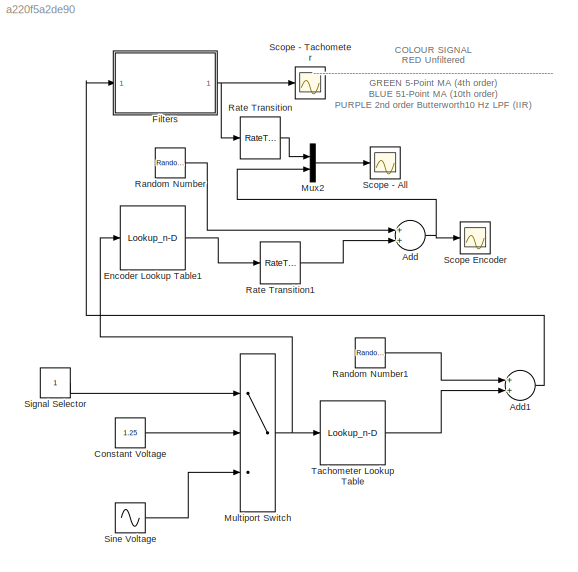
MODEL slx_a220f5a2de90
KIND model
CONFIG AbsTol = auto
CONFIG EnableMultiTasking = on
CONFIG FixedStep = 0.005
CONFIG MaxStep = auto
CONFIG MinStep = auto
CONFIG RelTol = 1e-3
CONFIG SampleTimeConstraint = Unconstrained
CONFIG Solver = FixedStepDiscrete
CONFIG SolverName = FixedStepDiscrete
CONFIG StartTime = 0.0
CONFIG StopTime = inf
BLOCK [Sum] Add
  InputSameDT = off
  OutDataTypeStr = Inherit: Inherit via internal rule
  Ports = [2, 1]
  SaturateOnIntegerOverflow = off
BLOCK [Sum] Add1
  InputSameDT = off
  OutDataTypeStr = Inherit: Inherit via internal rule
  Ports = [2, 1]
  SaturateOnIntegerOverflow = off
BLOCK [Constant] Constant Voltage
  Value = 1.25
BLOCK [Lookup_n-D] Encoder Lookup Table1
  BreakpointsForDimension1 = [-3:1:3]
  InternalRulePriority = Speed
  NumberOfTableDimensions = 1
  Ports = [1, 1]
  RndMeth = Simplest
  Table = [-265, -171, -78, 0, 81, 176, 275]
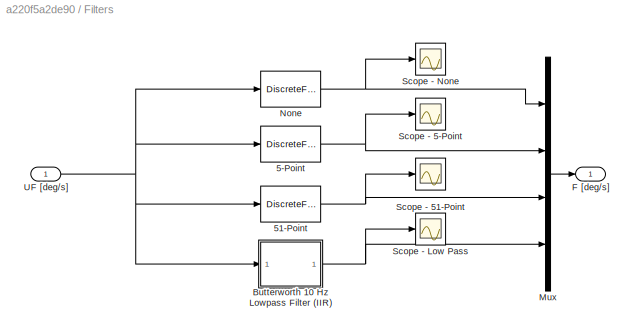
BLOCK [SubSystem] Filters
  Ports = [1, 1]
  RequestExecContextInheritance = off
  Variant = off
BLOCK [DiscreteFilter] Filters/5-Point
  Denominator = [1]
  InputPortMap = u0
  Numerator = 1/5*ones(1,5,'double')
  Ports = [1, 1]
BLOCK [DiscreteFilter] Filters/51-Point
  Denominator = [1]
  InputPortMap = u0
  Numerator = 1/51*ones(1,51,'double')
  Ports = [1, 1]
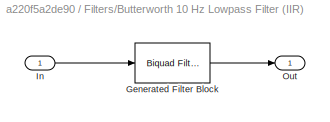
BLOCK [SubSystem] Filters/Butterworth 10 Hz Lowpass Filter (IIR)
  CopyFcn = fdesignblkfcn(gcbh, {'CopyFcn'});
  DialogController = fdesignblkfcn
  InitFcn = fdesignblkfcn(gcbh, {'InitFcn'});
  Ports = [1, 1]
  RequestExecContextInheritance = off
  UserDataPersistent = on
  Variant = off
BLOCK [Reference] Filters/Butterworth 10 Hz Lowpass Filter (IIR)/Generated Filter Block  REF=dsparch4/Biquad Filter
  Ports = [1, 1]
  SourceBlock = dsparch4/Biquad Filter
  SourceProductBaseCode = DS
  SourceProductName = DSP System Toolbox
  SourceType = Biquad Filter
  Tag = BlockMethodSubSystem
  UserDataPersistent = on
BLOCK [Inport] Filters/Butterworth 10 Hz Lowpass Filter (IIR)/In
  IconDisplay = Port number
BLOCK [Outport] Filters/Butterworth 10 Hz Lowpass Filter (IIR)/Out
  IconDisplay = Port number
BLOCK [Outport] Filters/F [deg//s]
  IconDisplay = Port number
BLOCK [Mux] Filters/Mux
  DisplayOption = bar
  Ports = [4, 1]
BLOCK [DiscreteFilter] Filters/None
  Denominator = [1]
  InputPortMap = u0
  Ports = [1, 1]
BLOCK [Scope] Filters/Scope - 5-Point
  NumInputPorts = 1
  Ports = [1]
  ScopeSpecificationString = C++SS(StrPVP('Location','[188, 390, 512, 629]'),StrPVP('Open','off'),MxPVP('AxesTitles',53,'struct(''axes1'',''%<SignalLabel>'')'),MxPVP('ScopeGraphics',56,'struct(''FigureColor'',''[0.5 0.5 0.5]'',''AxesColor'',''[0 0 0]'',''AxesTickColor'',''[1 1 1]'',''LineColors'',''[1 1 0;1 0 1;0 1 1;1 0 0;0 1 0;0 0 1]'',''LineStyles'',''-|-|-|-|-|-'',''LineWidths'',''[0.5 0.5 0.5 0.5 0.5 0.5]'',''MarkerStyle...<+313ch>
BLOCK [Scope] Filters/Scope - 51-Point
  NumInputPorts = 1
  Ports = [1]
  ScopeSpecificationString = C++SS(StrPVP('Location','[188, 390, 727, 726]'),StrPVP('Open','off'),MxPVP('AxesTitles',53,'struct(''axes1'',''%<SignalLabel>'')'),MxPVP('ScopeGraphics',56,'struct(''FigureColor'',''[0.5 0.5 0.5]'',''AxesColor'',''[0 0 0]'',''AxesTickColor'',''[1 1 1]'',''LineColors'',''[1 1 0;1 0 1;0 1 1;1 0 0;0 1 0;0 0 1]'',''LineStyles'',''-|-|-|-|-|-'',''LineWidths'',''[0.5 0.5 0.5 0.5 0.5 0.5]'',''MarkerStyle...<+318ch>
BLOCK [Scope] Filters/Scope - Low Pass
  NumInputPorts = 1
  Ports = [1]
  ScopeSpecificationString = C++SS(StrPVP('Location','[188, 390, 512, 629]'),StrPVP('Open','off'),MxPVP('AxesTitles',53,'struct(''axes1'',''%<SignalLabel>'')'),MxPVP('ScopeGraphics',56,'struct(''FigureColor'',''[0.5 0.5 0.5]'',''AxesColor'',''[0 0 0]'',''AxesTickColor'',''[1 1 1]'',''LineColors'',''[1 1 0;1 0 1;0 1 1;1 0 0;0 1 0;0 0 1]'',''LineStyles'',''-|-|-|-|-|-'',''LineWidths'',''[0.5 0.5 0.5 0.5 0.5 0.5]'',''MarkerStyle...<+315ch>
BLOCK [Scope] Filters/Scope - None
  NumInputPorts = 1
  Ports = [1]
  ScopeSpecificationString = C++SS(StrPVP('Location','[188, 390, 512, 629]'),StrPVP('Open','off'),MxPVP('AxesTitles',53,'struct(''axes1'',''%<SignalLabel>'')'),StrPVP('ShowLegends','off'),StrPVP('YMin','93'),StrPVP('YMax','98.5'),StrPVP('SaveName','ScopeData2'),StrPVP('DataFormat','StructureWithTime'),StrPVP('BlockParamSampleTime','0'),StrPVP('LimitDataPoints','on'),StrPVP('Decimation','1'),StrPVP('BlockParamSampleInput','off...<+3ch>
BLOCK [Inport] Filters/UF [deg//s]
  IconDisplay = Port number
BLOCK [MultiPortSwitch] Multiport Switch
  InputSameDT = off
  Inputs = 2
  Ports = [3, 1]
  SaturateOnIntegerOverflow = off
BLOCK [Mux] Mux2
  DisplayOption = bar
  Inputs = 2
  Ports = [2, 1]
BLOCK [RandomNumber] Random Number
  SampleTime = 0.02
  Variance = 1.5
BLOCK [RandomNumber] Random Number1
  SampleTime = 0.1
  Variance = 6.5
BLOCK [RateTransition] Rate Transition
  OutPortSampleTime = 0.02
BLOCK [RateTransition] Rate Transition1
  OutPortSampleTime = 0.02
BLOCK [Scope] Scope - All 
  NumInputPorts = 1
  Ports = [1]
  ScopeSpecificationString = Simulink.scopes.TimeScopeBlockCfg('CurrentConfiguration', extmgr.ConfigurationSet(extmgr.Configuration('Core','General UI',true,'FigureColor',[1 1 1]),extmgr.Configuration('Core','Source UI',true),extmgr.Configuration('Sources','WiredSimulink',true,'DataLoggingVariableName','ScopeData1','DataLoggingSaveFormat','StructureWithTime','DataLoggingDecimation','1','DataLoggingDecimateData',true),extmgr.C...<+2599ch>
BLOCK [Scope] Scope - Tachometer
  NumInputPorts = 1
  Ports = [1]
  ScopeSpecificationString = Simulink.scopes.TimeScopeBlockCfg('CurrentConfiguration', extmgr.ConfigurationSet(extmgr.Configuration('Core','General UI',true,'FigureColor',[1 1 1]),extmgr.Configuration('Core','Source UI',true),extmgr.Configuration('Sources','WiredSimulink',true,'DataLoggingSaveFormat','StructureWithTime','DataLoggingDecimation','1','DataLoggingDecimateData',true),extmgr.Configuration('Visuals','Time Domain',tr...<+2510ch>
BLOCK [Scope] Scope Encoder
  NumInputPorts = 1
  Ports = [1]
  ScopeSpecificationString = Simulink.scopes.TimeScopeBlockCfg('CurrentConfiguration', extmgr.ConfigurationSet(extmgr.Configuration('Core','General UI',true,'FigureColor',[1 1 1]),extmgr.Configuration('Core','Source UI',true),extmgr.Configuration('Sources','WiredSimulink',true,'DataLoggingVariableName','ScopeData5','DataLoggingSaveFormat','StructureWithTime','DataLoggingDecimation','1','DataLoggingDecimateData',true),extmgr.C...<+2669ch>
BLOCK [Constant] Signal Selector
BLOCK [Sin] Sine Voltage
  Amplitude = .25
  Bias = 1
  Frequency = 2*pi
  Ports = [0, 1]
  SampleTime = 0.1
BLOCK [Lookup_n-D] Tachometer Lookup Table
  BreakpointsForDimension1 = [-5:1:5]
  InternalRulePriority = Speed
  NumberOfTableDimensions = 1
  Ports = [1, 1]
  RndMeth = Simplest
  Table = [-502,-397.9,-293.5,-190.9,-87.95,0,92.42,194.3,295.4,398.6,502.7]
ANNOTATION (root): COLOUR SIGNAL -------------------------------------------------------------------------------- RED Unfiltered GREEN 5-Point MA (4th order) BLUE 51-Point MA (10th order) PURPLE 2nd order Butterworth10 Hz LPF (IIR) ORANGE Encoder Estimated
LINE Add1:1 -> Filters:1
NET Add:1 -> Mux2:2, Scope Encoder:1
LINE Constant Voltage:1 -> Multiport Switch:2
LINE Encoder Lookup Table1:1 -> Rate Transition1:1
NET Filters/5-Point:1 -> Filters/Mux:2, Filters/Scope - 5-Point:1
NET Filters/51-Point:1 -> Filters/Mux:3, Filters/Scope - 51-Point:1
NET Filters/Butterworth 10 Hz Lowpass Filter (IIR):1 -> Filters/Mux:4, Filters/Scope - Low Pass:1
LINE Filters/Mux:1 -> Filters/F [deg//s]:1
NET Filters/None:1 -> Filters/Mux:1, Filters/Scope - None:1
NET Filters/UF [deg//s]:1 -> Filters/5-Point:1, Filters/51-Point:1, Filters/Butterworth 10 Hz Lowpass Filter (IIR):1, Filters/None:1
NET Filters:1 -> Rate Transition:1, Scope - Tachometer:1
NET Multiport Switch:1 -> Encoder Lookup Table1:1, Tachometer Lookup Table:1
LINE Mux2:1 -> Scope - All :1
LINE Random Number1:1 -> Add1:1
LINE Random Number:1 -> Add:1
LINE Rate Transition1:1 -> Add:2
LINE Rate Transition:1 -> Mux2:1
LINE Signal Selector:1 -> Multiport Switch:1
LINE Sine Voltage:1 -> Multiport Switch:3
LINE Tachometer Lookup Table:1 -> Add1:2
note: NET lines group one-source signal fan-out (src -> all destinations, sorted); 1:1 wires keep LINE
